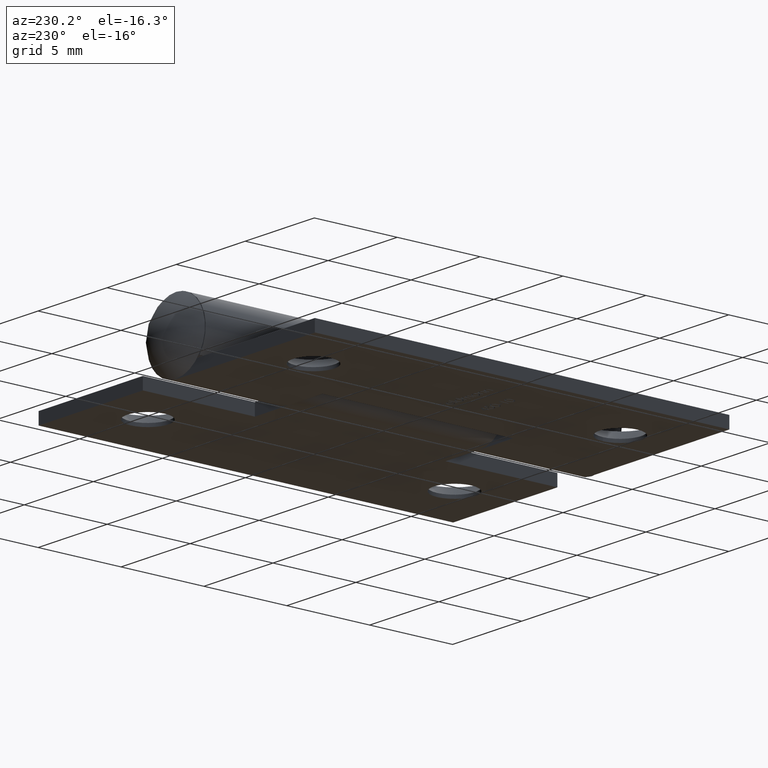
[diagram: clean part render]
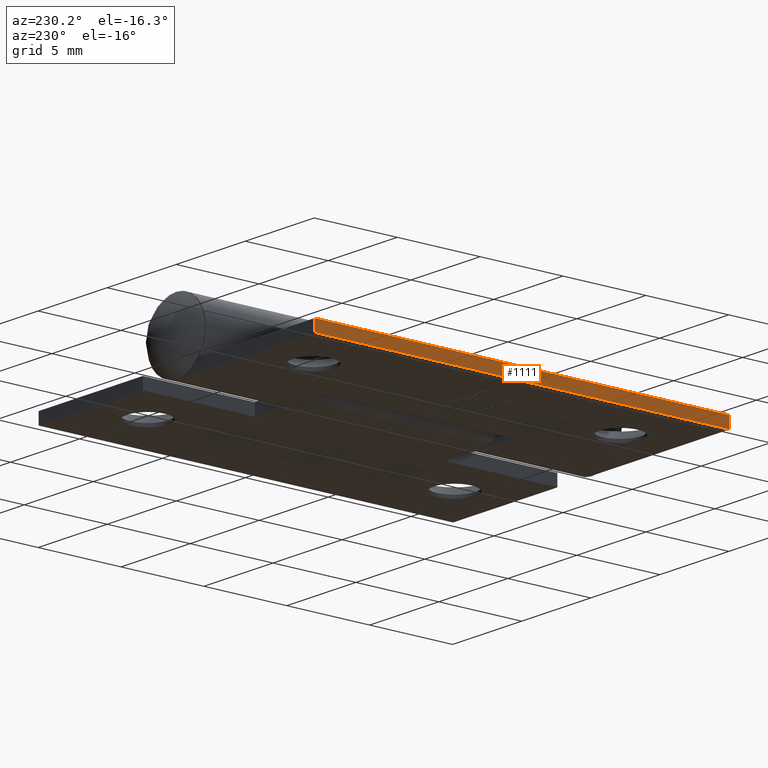
[diagram: same view with one face highlighted and labeled with its STEP entity id]
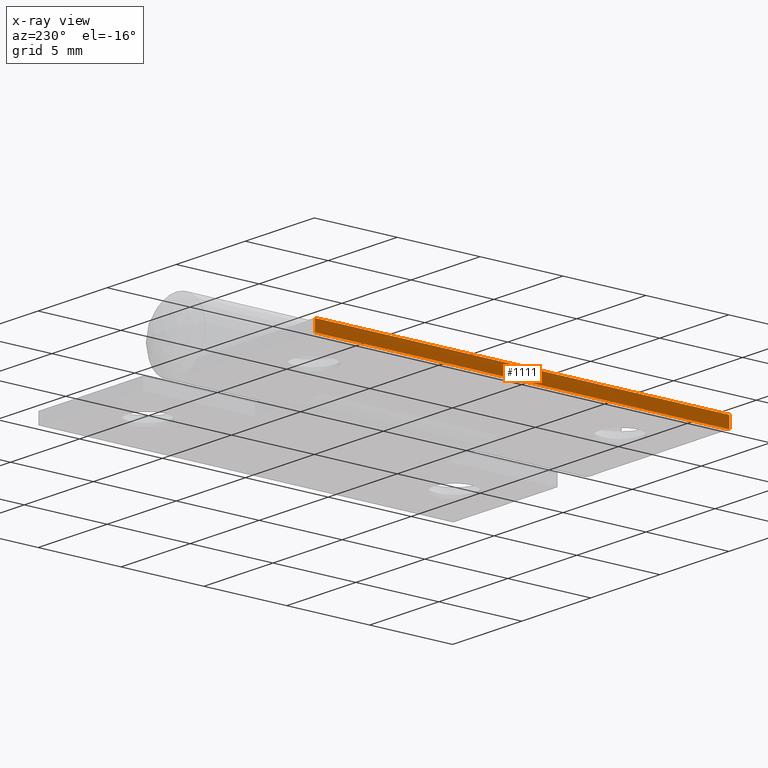
[diagram: x-ray of the same camera — body ghosted, the highlighted face saturated]
A machine part, auxiliary view. The second image highlights one B-rep face of the part: STEP entity #1111.
The next image is the same camera in x-ray: the body ghosted, the highlighted face saturated — about 0% of this face is hidden behind the body in this view.
In plain terms, the highlighted planar face has unit normal (1, 0, -0).
Its self-contained STEP definition (entity closure, byte-faithful):
#501 = EDGE_LOOP ( 'NONE', ( #3517, #10456, #9103, #1556 ) ) ;
#556 = LINE ( 'NONE', #5144, #7227 ) ;
#561 = CARTESIAN_POINT ( 'NONE',  ( -12.09999999999999964, 12.50000000000000000, 1.301042606982605321E-15 ) ) ;
#666 = VECTOR ( 'NONE', #7928, 1000.000000000000000 ) ;
#920 = DIRECTION ( 'NONE',  ( 1.000000000000000000, 0.000000000000000000, -2.478176394252581732E-15 ) ) ;
#952 = VERTEX_POINT ( 'NONE', #7087 ) ;
#1111 = ADVANCED_FACE ( 'NONE', ( #4083 ), #2464, .F. ) ;
#1146 = EDGE_CURVE ( 'NONE', #11207, #7150, #556, .T. ) ;
#1556 = ORIENTED_EDGE ( 'NONE', *, *, #7467, .T. ) ;
#1673 = EDGE_CURVE ( 'NONE', #952, #3092, #2068, .T. ) ;
#2068 = LINE ( 'NONE', #3883, #8466 ) ;
#2464 = PLANE ( 'NONE',  #9492 ) ;
#3092 = VERTEX_POINT ( 'NONE', #3462 ) ;
#3462 = CARTESIAN_POINT ( 'NONE',  ( -12.09999999999999787, -12.50000000000000000, 0.7000000000000012879 ) ) ;
#3517 = ORIENTED_EDGE ( 'NONE', *, *, #1673, .T. ) ;
#3566 = DIRECTION ( 'NONE',  ( -0.000000000000000000, -1.000000000000000000, -0.000000000000000000 ) ) ;
#3883 = CARTESIAN_POINT ( 'NONE',  ( -12.09999999999999787, -12.50000000000000000, 0.7000000000000012879 ) ) ;
#3962 = DIRECTION ( 'NONE',  ( 2.478176394252581732E-15, -0.000000000000000000, 1.000000000000000000 ) ) ;
#4083 = FACE_OUTER_BOUND ( 'NONE', #501, .T. ) ;
#4487 = DIRECTION ( 'NONE',  ( -2.478176394252581732E-15, 0.000000000000000000, -1.000000000000000000 ) ) ;
#4817 = LINE ( 'NONE', #8791, #8621 ) ;
#5144 = CARTESIAN_POINT ( 'NONE',  ( -12.09999999999999787, 12.50000000000000000, 0.7000000000000012879 ) ) ;
#5211 = DIRECTION ( 'NONE',  ( 2.478176394252581732E-15, -0.000000000000000000, 1.000000000000000000 ) ) ;
#6188 = CARTESIAN_POINT ( 'NONE',  ( -12.09999999999999787, 12.50000000000000000, 0.7000000000000012879 ) ) ;
#7087 = CARTESIAN_POINT ( 'NONE',  ( -12.09999999999999964, -12.50000000000000000, 1.301042606982605321E-15 ) ) ;
#7150 = VERTEX_POINT ( 'NONE', #7304 ) ;
#7227 = VECTOR ( 'NONE', #5211, 1000.000000000000000 ) ;
#7304 = CARTESIAN_POINT ( 'NONE',  ( -12.09999999999999787, 12.50000000000000000, 0.7000000000000012879 ) ) ;
#7467 = EDGE_CURVE ( 'NONE', #11207, #952, #4817, .T. ) ;
#7928 = DIRECTION ( 'NONE',  ( -0.000000000000000000, -1.000000000000000000, -0.000000000000000000 ) ) ;
#8466 = VECTOR ( 'NONE', #3962, 1000.000000000000000 ) ;
#8586 = CARTESIAN_POINT ( 'NONE',  ( -12.09999999999999787, 12.50000000000000000, 0.7000000000000012879 ) ) ;
#8621 = VECTOR ( 'NONE', #3566, 1000.000000000000000 ) ;
#8791 = CARTESIAN_POINT ( 'NONE',  ( -12.09999999999999964, 12.50000000000000000, 1.301042606982605321E-15 ) ) ;
#9103 = ORIENTED_EDGE ( 'NONE', *, *, #1146, .F. ) ;
#9492 = AXIS2_PLACEMENT_3D ( 'NONE', #8586, #920, #4487 ) ;
#9824 = LINE ( 'NONE', #6188, #666 ) ;
#10456 = ORIENTED_EDGE ( 'NONE', *, *, #10537, .F. ) ;
#10537 = EDGE_CURVE ( 'NONE', #7150, #3092, #9824, .T. ) ;
#11207 = VERTEX_POINT ( 'NONE', #561 ) ;